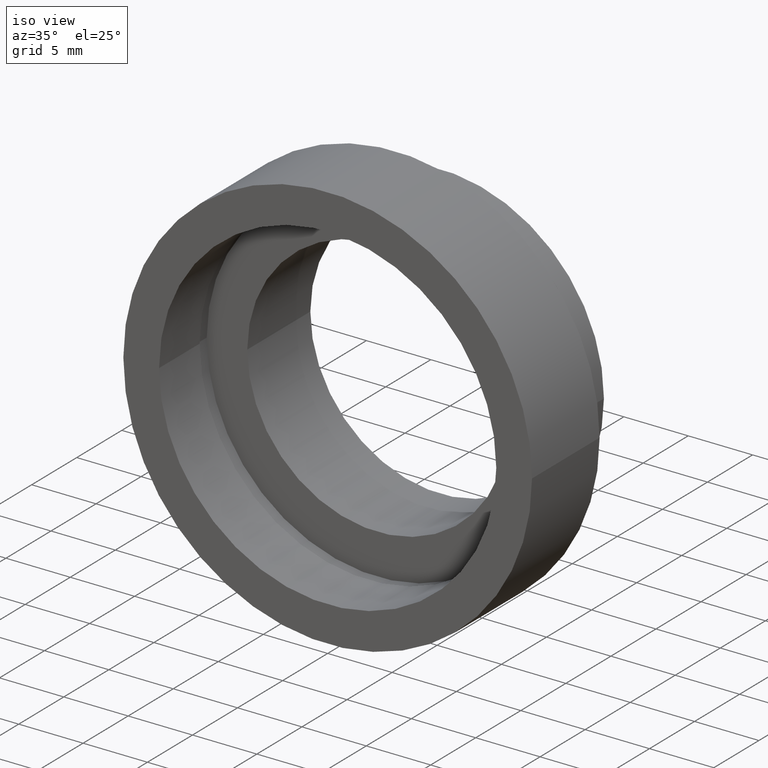
[diagram: clean part render]
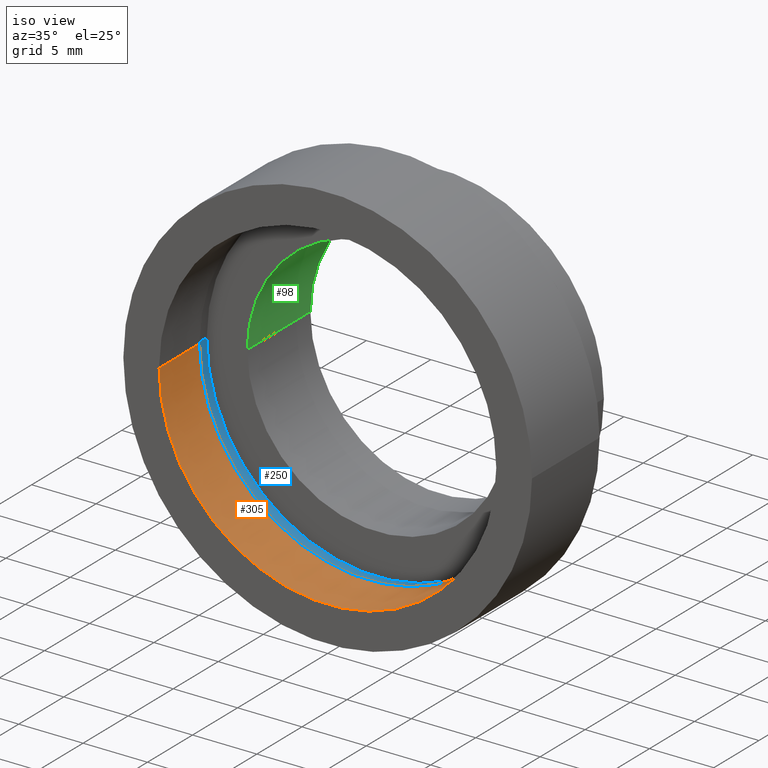
[diagram: same view with three faces highlighted in distinct colors, each labeled with its STEP entity id]
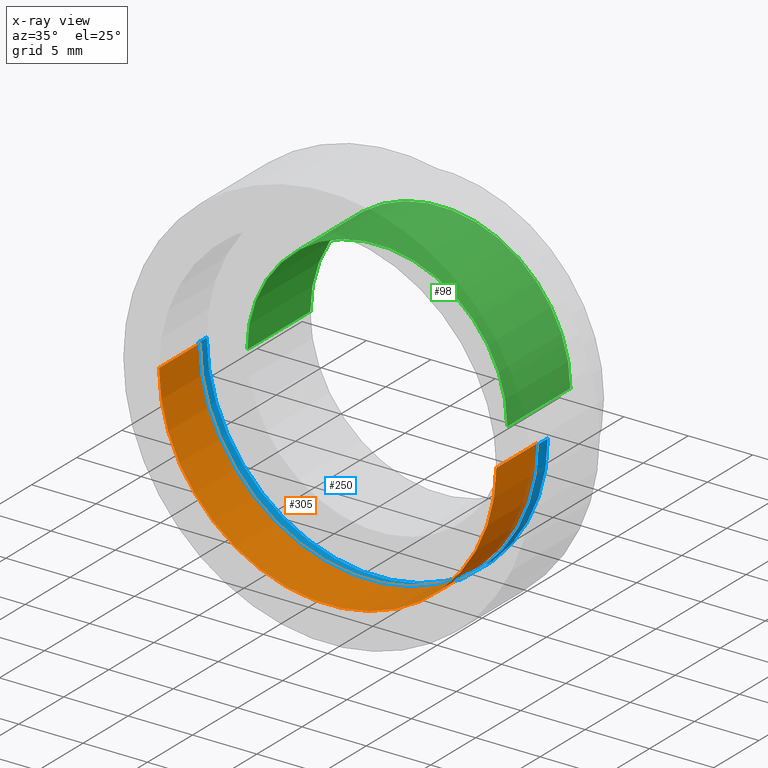
[diagram: x-ray of the same camera — body ghosted, the three highlighted faces saturated]
A machine part, iso view with three faces highlighted in distinct colors.
The next image is the same camera in x-ray (body ghosted, the three faces saturated) — at least one of them is partly hidden behind the body in this view.
Their STEP definitions:

[orange] entity #305 — the highlighted cylindrical surface (partial cylindrical patch) has radius 13.1 mm, axis along (-0, 1, -0).
#32 = DIRECTION ( 'NONE',  ( -1.224646799147351000E-016, 1.000000000000000000, -0.0000000000000000000 ) ) ;
#66 = CYLINDRICAL_SURFACE ( 'NONE', #185, 13.10000000000000000 ) ;
#72 = LINE ( 'NONE', #290, #548 ) ;
#81 = ORIENTED_EDGE ( 'NONE', *, *, #410, .F. ) ;
#83 = FACE_OUTER_BOUND ( 'NONE', #223, .T. ) ;
#111 = VERTEX_POINT ( 'NONE', #362 ) ;
#119 = CARTESIAN_POINT ( 'NONE',  ( 13.10000000000000100, 1.604287306883029700E-015, 1.604287306883032600E-015 ) ) ;
#142 = CARTESIAN_POINT ( 'NONE',  ( 13.10000000000000000, 16.88601823708207700, 1.604287306883032600E-015 ) ) ;
#145 = DIRECTION ( 'NONE',  ( -1.224646799147351000E-016, 1.000000000000000000, -0.0000000000000000000 ) ) ;
#151 = CARTESIAN_POINT ( 'NONE',  ( -13.09999999999999800, 4.499999999999993800, 0.0000000000000000000 ) ) ;
#155 = VERTEX_POINT ( 'NONE', #484 ) ;
#170 = LINE ( 'NONE', #142, #608 ) ;
#185 = AXIS2_PLACEMENT_3D ( 'NONE', #221, #554, #448 ) ;
#221 = CARTESIAN_POINT ( 'NONE',  ( 0.0000000000000000000, 16.88601823708207700, 0.0000000000000000000 ) ) ;
#223 = EDGE_LOOP ( 'NONE', ( #373, #310, #432, #81 ) ) ;
#254 = CIRCLE ( 'NONE', #611, 13.10000000000000000 ) ;
#258 = VERTEX_POINT ( 'NONE', #119 ) ;
#290 = CARTESIAN_POINT ( 'NONE',  ( -13.10000000000000000, 16.88601823708207700, 0.0000000000000000000 ) ) ;
#305 = ADVANCED_FACE ( 'NONE', ( #83 ), #66, .F. ) ;
#310 = ORIENTED_EDGE ( 'NONE', *, *, #399, .T. ) ;
#338 = CARTESIAN_POINT ( 'NONE',  ( 1.516849758822328500E-015, 4.499999999999995600, 0.0000000000000000000 ) ) ;
#362 = CARTESIAN_POINT ( 'NONE',  ( 13.10000000000000100, 4.499999999999997300, 1.604287306883032600E-015 ) ) ;
#373 = ORIENTED_EDGE ( 'NONE', *, *, #461, .F. ) ;
#379 = EDGE_CURVE ( 'NONE', #111, #577, #523, .T. ) ;
#380 = DIRECTION ( 'NONE',  ( -1.000000000000000000, -1.224646799147351000E-016, 0.0000000000000000000 ) ) ;
#383 = DIRECTION ( 'NONE',  ( -1.224646799147351000E-016, 1.000000000000000000, -0.0000000000000000000 ) ) ;
#399 = EDGE_CURVE ( 'NONE', #258, #111, #170, .T. ) ;
#410 = EDGE_CURVE ( 'NONE', #155, #577, #72, .T. ) ;
#432 = ORIENTED_EDGE ( 'NONE', *, *, #379, .T. ) ;
#448 = DIRECTION ( 'NONE',  ( -1.000000000000000000, 0.0000000000000000000, 0.0000000000000000000 ) ) ;
#461 = EDGE_CURVE ( 'NONE', #258, #155, #254, .T. ) ;
#465 = DIRECTION ( 'NONE',  ( -1.000000000000000000, -1.324216393875425300E-016, 0.0000000000000000000 ) ) ;
#484 = CARTESIAN_POINT ( 'NONE',  ( -13.09999999999999800, -1.604287306883029700E-015, 0.0000000000000000000 ) ) ;
#485 = AXIS2_PLACEMENT_3D ( 'NONE', #338, #383, #465 ) ;
#522 = DIRECTION ( 'NONE',  ( -1.224646799147351000E-016, 1.000000000000000000, -0.0000000000000000000 ) ) ;
#523 = CIRCLE ( 'NONE', #485, 13.10000000000000000 ) ;
#548 = VECTOR ( 'NONE', #145, 1000.000000000000000 ) ;
#554 = DIRECTION ( 'NONE',  ( -1.224646799147351000E-016, 1.000000000000000000, -0.0000000000000000000 ) ) ;
#577 = VERTEX_POINT ( 'NONE', #151 ) ;
#604 = CARTESIAN_POINT ( 'NONE',  ( 2.067940818438636100E-015, 0.0000000000000000000, 0.0000000000000000000 ) ) ;
#608 = VECTOR ( 'NONE', #32, 1000.000000000000000 ) ;
#611 = AXIS2_PLACEMENT_3D ( 'NONE', #604, #522, #380 ) ;

[blue] entity #250 — the highlighted cylindrical surface (partial cylindrical patch) has radius 13.25 mm, axis along (-0, 1, -0).
#16 = CARTESIAN_POINT ( 'NONE',  ( 0.0000000000000000000, 16.88601823708207700, 0.0000000000000000000 ) ) ;
#31 = CARTESIAN_POINT ( 'NONE',  ( 13.24999999999999800, 16.88601823708207700, 1.622657008870242700E-015 ) ) ;
#40 = CARTESIAN_POINT ( 'NONE',  ( 1.516849758822328500E-015, 4.499999999999995600, 0.0000000000000000000 ) ) ;
#73 = ORIENTED_EDGE ( 'NONE', *, *, #403, .F. ) ;
#74 = ORIENTED_EDGE ( 'NONE', *, *, #495, .T. ) ;
#115 = DIRECTION ( 'NONE',  ( -1.224646799147351000E-016, 1.000000000000000000, -0.0000000000000000000 ) ) ;
#191 = LINE ( 'NONE', #31, #345 ) ;
#195 = VERTEX_POINT ( 'NONE', #309 ) ;
#201 = CARTESIAN_POINT ( 'NONE',  ( 1.394385078907593200E-015, 5.499999999999996400, 0.0000000000000000000 ) ) ;
#216 = CYLINDRICAL_SURFACE ( 'NONE', #381, 13.24999999999999800 ) ;
#243 = AXIS2_PLACEMENT_3D ( 'NONE', #40, #468, #421 ) ;
#250 = ADVANCED_FACE ( 'NONE', ( #521 ), #216, .F. ) ;
#262 = EDGE_CURVE ( 'NONE', #583, #342, #191, .T. ) ;
#267 = ORIENTED_EDGE ( 'NONE', *, *, #268, .F. ) ;
#268 = EDGE_CURVE ( 'NONE', #195, #287, #395, .T. ) ;
#282 = ORIENTED_EDGE ( 'NONE', *, *, #262, .T. ) ;
#287 = VERTEX_POINT ( 'NONE', #498 ) ;
#309 = CARTESIAN_POINT ( 'NONE',  ( -13.24999999999999600, 4.499999999999993800, 0.0000000000000000000 ) ) ;
#326 = DIRECTION ( 'NONE',  ( -1.224646799147351000E-016, 1.000000000000000000, -0.0000000000000000000 ) ) ;
#342 = VERTEX_POINT ( 'NONE', #367 ) ;
#345 = VECTOR ( 'NONE', #402, 1000.000000000000000 ) ;
#367 = CARTESIAN_POINT ( 'NONE',  ( 13.25000000000000400, 5.499999999999998200, 1.622657008870243100E-015 ) ) ;
#381 = AXIS2_PLACEMENT_3D ( 'NONE', #16, #115, #534 ) ;
#395 = LINE ( 'NONE', #452, #512 ) ;
#402 = DIRECTION ( 'NONE',  ( -1.224646799147351000E-016, 1.000000000000000000, -0.0000000000000000000 ) ) ;
#403 = EDGE_CURVE ( 'NONE', #583, #195, #475, .T. ) ;
#421 = DIRECTION ( 'NONE',  ( -1.000000000000000000, -1.309225264888156400E-016, 0.0000000000000000000 ) ) ;
#452 = CARTESIAN_POINT ( 'NONE',  ( -13.24999999999999800, 16.88601823708207700, 0.0000000000000000000 ) ) ;
#468 = DIRECTION ( 'NONE',  ( -1.224646799147351000E-016, 1.000000000000000000, -0.0000000000000000000 ) ) ;
#475 = CIRCLE ( 'NONE', #243, 13.24999999999999800 ) ;
#479 = CARTESIAN_POINT ( 'NONE',  ( 13.25000000000000000, 4.499999999999997300, 1.622657008870242700E-015 ) ) ;
#492 = CIRCLE ( 'NONE', #546, 13.25000000000000000 ) ;
#495 = EDGE_CURVE ( 'NONE', #342, #287, #492, .T. ) ;
#498 = CARTESIAN_POINT ( 'NONE',  ( -13.24999999999999800, 5.499999999999994700, 0.0000000000000000000 ) ) ;
#512 = VECTOR ( 'NONE', #326, 1000.000000000000000 ) ;
#516 = EDGE_LOOP ( 'NONE', ( #73, #282, #74, #267 ) ) ;
#521 = FACE_OUTER_BOUND ( 'NONE', #516, .T. ) ;
#529 = DIRECTION ( 'NONE',  ( -1.224646799147351000E-016, 1.000000000000000000, -0.0000000000000000000 ) ) ;
#534 = DIRECTION ( 'NONE',  ( -1.000000000000000000, 0.0000000000000000000, 0.0000000000000000000 ) ) ;
#546 = AXIS2_PLACEMENT_3D ( 'NONE', #201, #529, #575 ) ;
#575 = DIRECTION ( 'NONE',  ( -1.000000000000000000, -1.309225264888156400E-016, 0.0000000000000000000 ) ) ;
#583 = VERTEX_POINT ( 'NONE', #479 ) ;

[green] entity #98 — the highlighted cylindrical surface (partial cylindrical patch) has radius 10.1 mm, axis along (-0, 1, -0).
#7 = CARTESIAN_POINT ( 'NONE',  ( 10.10000000000000100, 5.499999999999997300, 1.236893267138826600E-015 ) ) ;
#56 = ORIENTED_EDGE ( 'NONE', *, *, #606, .F. ) ;
#77 = DIRECTION ( 'NONE',  ( -1.224646799147351000E-016, 1.000000000000000000, -0.0000000000000000000 ) ) ;
#98 = ADVANCED_FACE ( 'NONE', ( #336 ), #545, .F. ) ;
#99 = DIRECTION ( 'NONE',  ( -1.000000000000000000, -8.587739980083203700E-017, 0.0000000000000000000 ) ) ;
#101 = AXIS2_PLACEMENT_3D ( 'NONE', #230, #77, #358 ) ;
#105 = ORIENTED_EDGE ( 'NONE', *, *, #470, .F. ) ;
#118 = VERTEX_POINT ( 'NONE', #7 ) ;
#127 = CARTESIAN_POINT ( 'NONE',  ( 5.371323195044473300E-016, 12.49999999999999600, 0.0000000000000000000 ) ) ;
#129 = AXIS2_PLACEMENT_3D ( 'NONE', #127, #503, #316 ) ;
#138 = VECTOR ( 'NONE', #388, 1000.000000000000000 ) ;
#149 = CARTESIAN_POINT ( 'NONE',  ( -10.09999999999999800, 5.499999999999995600, 0.0000000000000000000 ) ) ;
#152 = VECTOR ( 'NONE', #527, 1000.000000000000000 ) ;
#181 = VERTEX_POINT ( 'NONE', #259 ) ;
#197 = CARTESIAN_POINT ( 'NONE',  ( 10.10000000000000000, 12.49999999999999800, 1.236893267138826600E-015 ) ) ;
#230 = CARTESIAN_POINT ( 'NONE',  ( 0.0000000000000000000, 16.88601823708207700, 0.0000000000000000000 ) ) ;
#248 = LINE ( 'NONE', #344, #152 ) ;
#249 = ORIENTED_EDGE ( 'NONE', *, *, #563, .T. ) ;
#259 = CARTESIAN_POINT ( 'NONE',  ( -10.10000000000000000, 12.49999999999999500, 0.0000000000000000000 ) ) ;
#300 = CARTESIAN_POINT ( 'NONE',  ( 10.10000000000000000, 16.88601823708207700, 1.236893267138826600E-015 ) ) ;
#316 = DIRECTION ( 'NONE',  ( -1.000000000000000000, -1.717547996016640700E-016, 0.0000000000000000000 ) ) ;
#336 = FACE_OUTER_BOUND ( 'NONE', #341, .T. ) ;
#341 = EDGE_LOOP ( 'NONE', ( #56, #105, #249, #569 ) ) ;
#344 = CARTESIAN_POINT ( 'NONE',  ( -10.10000000000000000, 16.88601823708207700, 0.0000000000000000000 ) ) ;
#358 = DIRECTION ( 'NONE',  ( -1.000000000000000000, 0.0000000000000000000, 0.0000000000000000000 ) ) ;
#363 = EDGE_CURVE ( 'NONE', #181, #482, #514, .T. ) ;
#388 = DIRECTION ( 'NONE',  ( -1.224646799147351000E-016, 1.000000000000000000, -0.0000000000000000000 ) ) ;
#470 = EDGE_CURVE ( 'NONE', #531, #118, #590, .T. ) ;
#482 = VERTEX_POINT ( 'NONE', #197 ) ;
#503 = DIRECTION ( 'NONE',  ( -1.224646799147351000E-016, 1.000000000000000000, -0.0000000000000000000 ) ) ;
#514 = CIRCLE ( 'NONE', #129, 10.10000000000000000 ) ;
#527 = DIRECTION ( 'NONE',  ( -1.224646799147351000E-016, 1.000000000000000000, -0.0000000000000000000 ) ) ;
#531 = VERTEX_POINT ( 'NONE', #149 ) ;
#537 = LINE ( 'NONE', #300, #138 ) ;
#545 = CYLINDRICAL_SURFACE ( 'NONE', #101, 10.10000000000000000 ) ;
#558 = AXIS2_PLACEMENT_3D ( 'NONE', #573, #579, #99 ) ;
#563 = EDGE_CURVE ( 'NONE', #531, #181, #248, .T. ) ;
#569 = ORIENTED_EDGE ( 'NONE', *, *, #363, .T. ) ;
#573 = CARTESIAN_POINT ( 'NONE',  ( 1.394385078907593200E-015, 5.499999999999996400, 0.0000000000000000000 ) ) ;
#579 = DIRECTION ( 'NONE',  ( -1.224646799147351000E-016, 1.000000000000000000, -0.0000000000000000000 ) ) ;
#590 = CIRCLE ( 'NONE', #558, 10.10000000000000000 ) ;
#606 = EDGE_CURVE ( 'NONE', #118, #482, #537, .T. ) ;